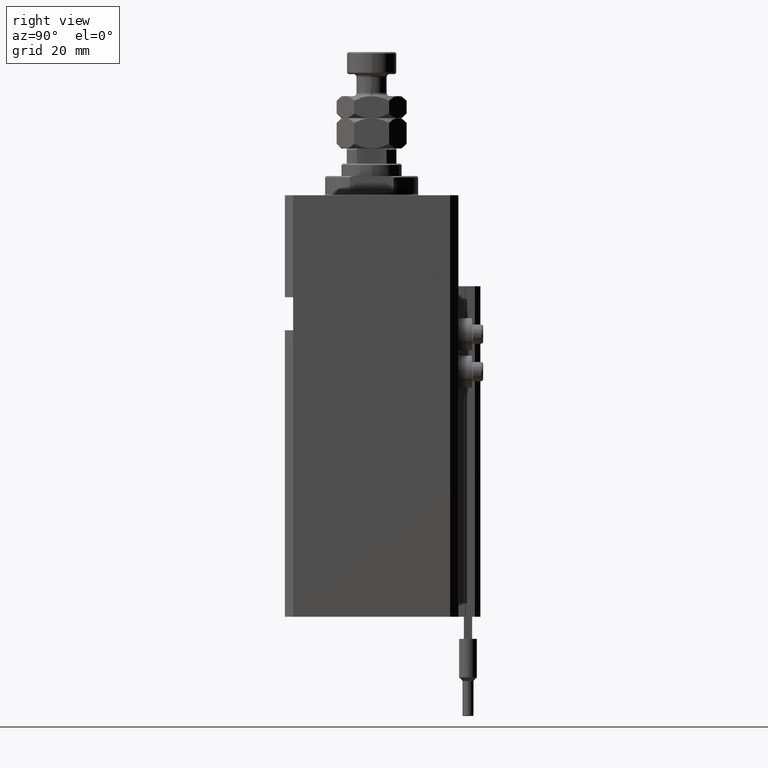
[diagram: clean part render]
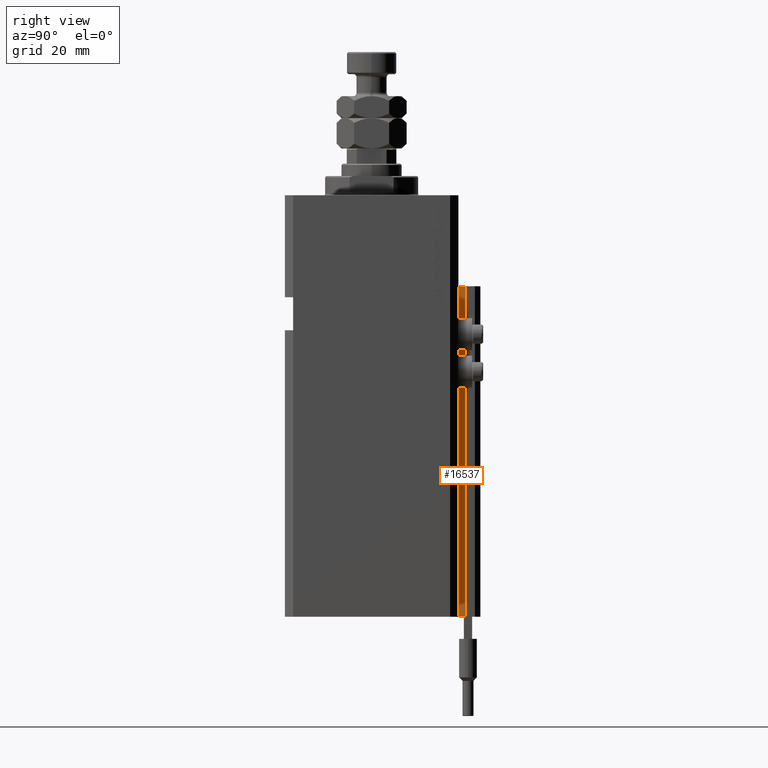
[diagram: same view with one face highlighted and labeled with its STEP entity id]
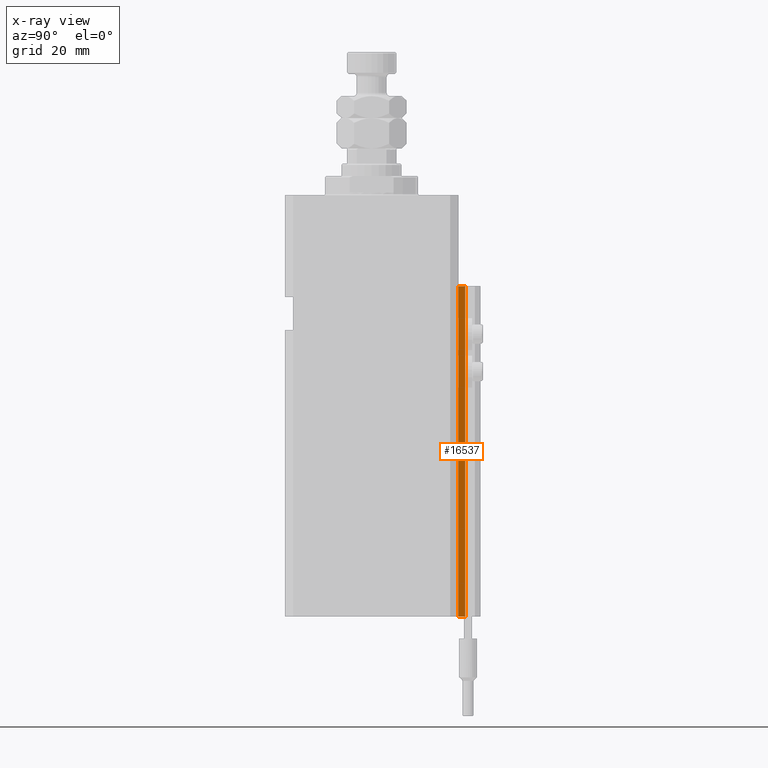
[diagram: x-ray of the same camera — body ghosted, the highlighted face saturated]
A machine part, right view. The second image highlights one B-rep face of the part: STEP entity #16537.
The next image is the same camera in x-ray: the body ghosted, the highlighted face saturated — about 0% of this face is hidden behind the body in this view.
In plain terms, the highlighted planar face has unit normal (1, 0, 0).
Its self-contained STEP definition (entity closure, byte-faithful):
#777 = EDGE_LOOP ( 'NONE', ( #25186, #11280, #50549, #25277 ) ) ;
#1575 = PLANE ( 'NONE',  #1913 ) ;
#1913 = AXIS2_PLACEMENT_3D ( 'NONE', #47594, #24335, #32499 ) ;
#2191 = CARTESIAN_POINT ( 'NONE',  ( 14.49999999999999645, 34.00000000000001421, -153.0000000000000000 ) ) ;
#7216 = CARTESIAN_POINT ( 'NONE',  ( 14.49999999999999645, 34.00000000000001421, -153.0000000000000000 ) ) ;
#8565 = EDGE_CURVE ( 'NONE', #18842, #17605, #21615, .T. ) ;
#8824 = CARTESIAN_POINT ( 'NONE',  ( 14.49999999999999645, 31.50000000000000000, -153.0000000000000000 ) ) ;
#9509 = EDGE_CURVE ( 'NONE', #28217, #18842, #29524, .T. ) ;
#11280 = ORIENTED_EDGE ( 'NONE', *, *, #12445, .F. ) ;
#12445 = EDGE_CURVE ( 'NONE', #28217, #19818, #38233, .T. ) ;
#12980 = VECTOR ( 'NONE', #27042, 1000.000000000000000 ) ;
#14668 = DIRECTION ( 'NONE',  ( 0.000000000000000000, 1.000000000000000000, 0.000000000000000000 ) ) ;
#15015 = LINE ( 'NONE', #30623, #12980 ) ;
#16537 = ADVANCED_FACE ( 'NONE', ( #25100 ), #1575, .T. ) ;
#16946 = VECTOR ( 'NONE', #34887, 1000.000000000000000 ) ;
#17605 = VERTEX_POINT ( 'NONE', #42523 ) ;
#18842 = VERTEX_POINT ( 'NONE', #7216 ) ;
#19818 = VERTEX_POINT ( 'NONE', #46231 ) ;
#21615 = LINE ( 'NONE', #2191, #24954 ) ;
#24335 = DIRECTION ( 'NONE',  ( 1.000000000000000000, 0.000000000000000000, 0.000000000000000000 ) ) ;
#24954 = VECTOR ( 'NONE', #33380, 1000.000000000000000 ) ;
#25100 = FACE_OUTER_BOUND ( 'NONE', #777, .T. ) ;
#25186 = ORIENTED_EDGE ( 'NONE', *, *, #36034, .F. ) ;
#25277 = ORIENTED_EDGE ( 'NONE', *, *, #8565, .T. ) ;
#26726 = CARTESIAN_POINT ( 'NONE',  ( 14.49999999999999645, 31.50000000000000000, -153.0000000000000000 ) ) ;
#27042 = DIRECTION ( 'NONE',  ( 0.000000000000000000, 1.000000000000000000, 0.000000000000000000 ) ) ;
#28217 = VERTEX_POINT ( 'NONE', #45652 ) ;
#29524 = LINE ( 'NONE', #8824, #50334 ) ;
#30623 = CARTESIAN_POINT ( 'NONE',  ( 14.49999999999999645, 31.50000000000000000, -33.00000000000000000 ) ) ;
#32499 = DIRECTION ( 'NONE',  ( 0.000000000000000000, 0.000000000000000000, -1.000000000000000000 ) ) ;
#33380 = DIRECTION ( 'NONE',  ( 0.000000000000000000, 0.000000000000000000, 1.000000000000000000 ) ) ;
#34887 = DIRECTION ( 'NONE',  ( 0.000000000000000000, 0.000000000000000000, 1.000000000000000000 ) ) ;
#36034 = EDGE_CURVE ( 'NONE', #19818, #17605, #15015, .T. ) ;
#38233 = LINE ( 'NONE', #26726, #16946 ) ;
#42523 = CARTESIAN_POINT ( 'NONE',  ( 14.49999999999999645, 34.00000000000001421, -33.00000000000000000 ) ) ;
#45652 = CARTESIAN_POINT ( 'NONE',  ( 14.49999999999999645, 31.50000000000000000, -153.0000000000000000 ) ) ;
#46231 = CARTESIAN_POINT ( 'NONE',  ( 14.49999999999999645, 31.50000000000000000, -33.00000000000000000 ) ) ;
#47594 = CARTESIAN_POINT ( 'NONE',  ( 14.49999999999999645, 31.50000000000000000, -153.0000000000000000 ) ) ;
#50334 = VECTOR ( 'NONE', #14668, 1000.000000000000000 ) ;
#50549 = ORIENTED_EDGE ( 'NONE', *, *, #9509, .T. ) ;